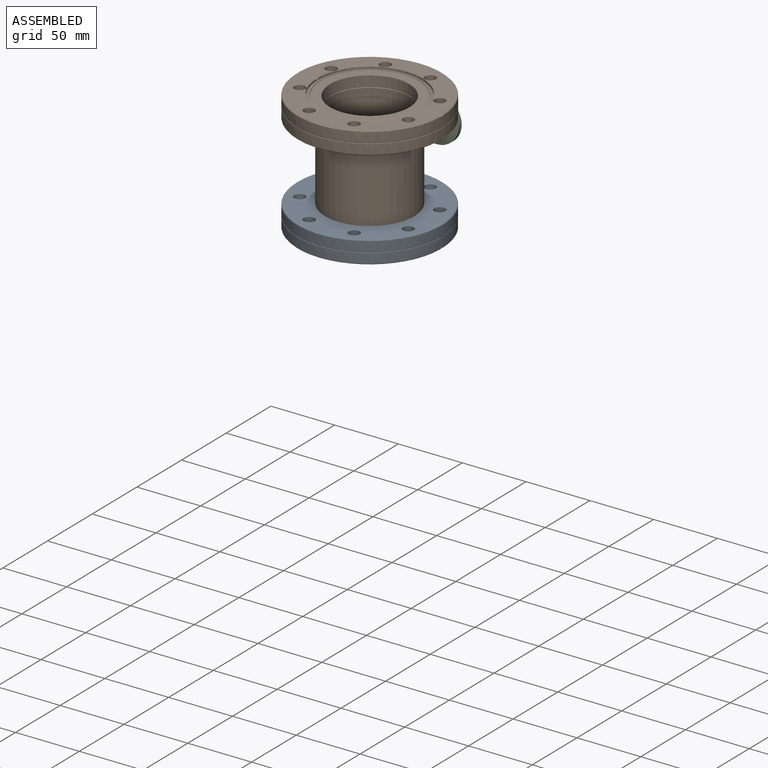
[diagram: assembled view]
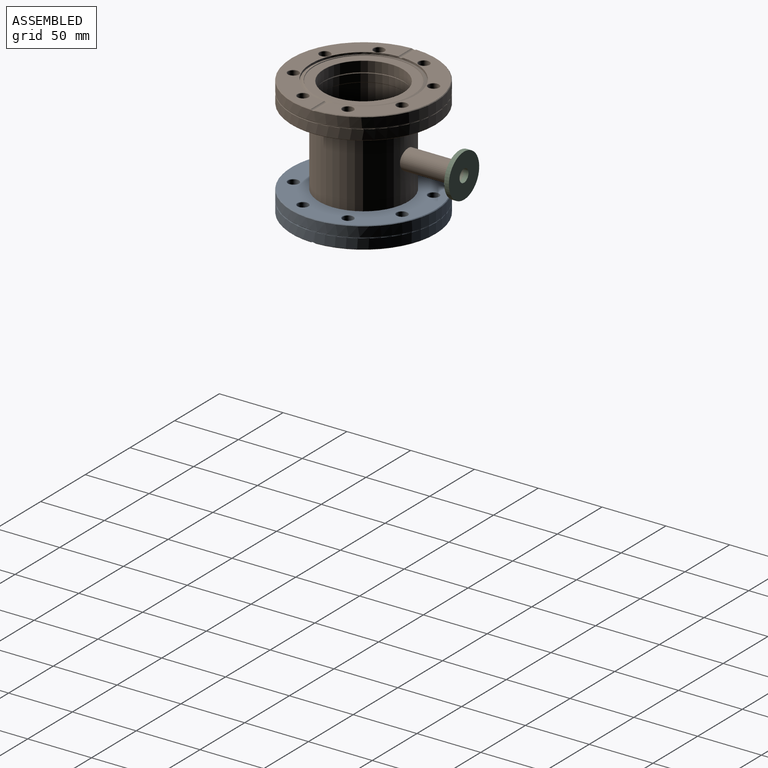
[diagram: assembled view, second angle]
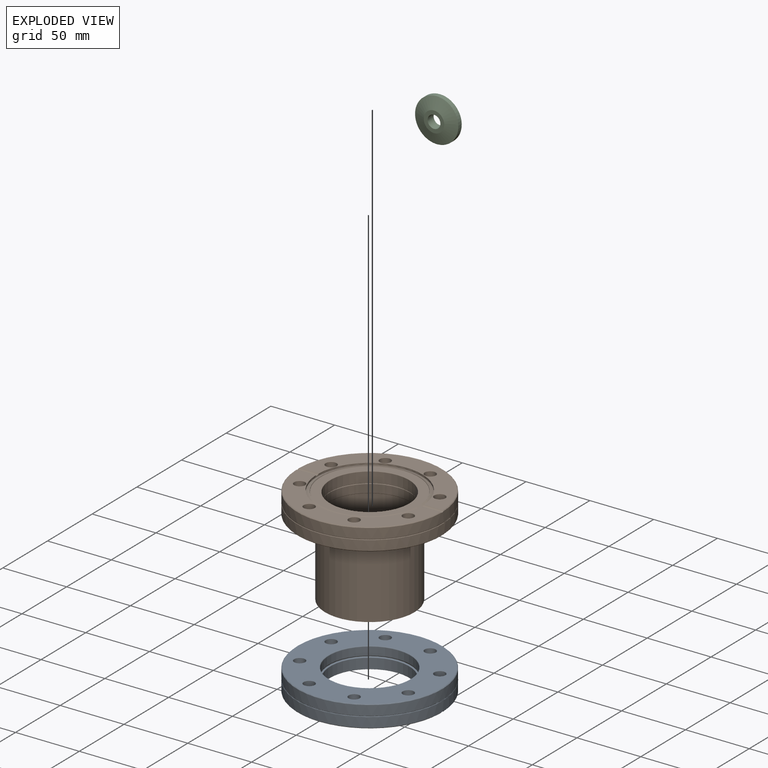
[diagram: exploded view]
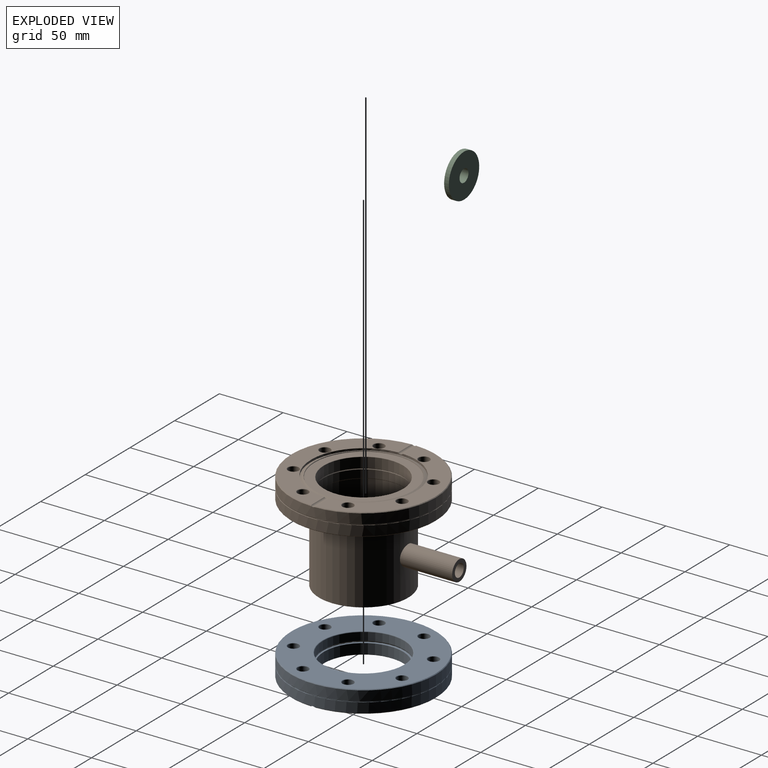
[diagram: exploded view, second angle]
ASSEMBLY  parts=3 mates=2
PART A: 47 faces, bbox 123.4x17.3x123.4 mm
  f0: cylinder r=56.77mm len=113.54mm, axis (0,-1,0), area 2742.3mm2, adj f1,f2,f5,f11,f42
  f1: cylinder r=2.38mm len=15.52mm, axis (0,0,1), area 61.5mm2, adj f0,f2,f3,f4,f5,f6
  f2: cone r=56.77mm half-angle=45deg, axis (0,1,0), area 125.5mm2, adj f0,f1,f3,f11
  f3: plane 112.47x54.49mm, normal (0,-1,0), area 1991.8mm2, adj f1,f2,f4,f11,f12,f15,f18,f21
  f4: cylinder r=41.27mm len=82.55mm, axis (0,1,0), area 423mm2, adj f1,f3,f6,f11,f44
  f5: cone r=56.77mm half-angle=45deg, axis (0,1,0), area 125.5mm2, adj f0,f1,f6,f11
  f6: plane 112.47x54.49mm, normal (0,-1,0), area 1991.8mm2, adj f1,f4,f5,f11,f24,f27,f30,f33
  f7: cylinder r=56.77mm len=113.54mm, axis (0,-1,0), area 2742.3mm2, adj f39,f42
  f8: plane 112.52x112.52mm, normal (0,1,0), area 6147mm2, adj f13,f16,f19,f22,f25,f28,f31,f34
  f9: cylinder r=31.88mm len=63.75mm, axis (0,1,0), area 1229.6mm2, adj f36,f41
  f10: cylinder r=30.99mm len=61.98mm, axis (0,-1,0), area 1538mm2, adj f37,f38
  f11: cylinder r=2.38mm len=15.52mm, axis (0,0,-1), area 61.5mm2, adj f0,f2,f3,f4,f5,f6
  f12: cone r=4.47mm half-angle=45deg, axis (0,-1,0), area 9.8mm2, adj f3,f14
  f13: cone r=4.22mm half-angle=45deg, axis (0,1,0), area 9.8mm2, adj f8,f14
  f14: cylinder r=4.22mm len=16.76mm, axis (0,-1,0), area 444.1mm2, adj f12,f13
  f15: cone r=4.47mm half-angle=45deg, axis (0,-1,0), area 9.8mm2, adj f3,f17
  f16: cone r=4.22mm half-angle=45deg, axis (0,1,0), area 9.8mm2, adj f8,f17
  f17: cylinder r=4.22mm len=16.76mm, axis (0,-1,0), area 444.1mm2, adj f15,f16
  f18: cone r=4.47mm half-angle=45deg, axis (0,-1,0), area 9.8mm2, adj f3,f20
  f19: cone r=4.22mm half-angle=45deg, axis (0,1,0), area 9.8mm2, adj f8,f20
  f20: cylinder r=4.22mm len=16.76mm, axis (0,-1,0), area 444.1mm2, adj f18,f19
  f21: cone r=4.47mm half-angle=45deg, axis (0,-1,0), area 9.8mm2, adj f3,f23
  f22: cone r=4.22mm half-angle=45deg, axis (0,1,0), area 9.8mm2, adj f8,f23
  f23: cylinder r=4.22mm len=16.76mm, axis (0,-1,0), area 444.1mm2, adj f21,f22
  f24: cone r=4.47mm half-angle=45deg, axis (0,-1,0), area 9.8mm2, adj f6,f26
  f25: cone r=4.22mm half-angle=45deg, axis (0,1,0), area 9.8mm2, adj f8,f26
  f26: cylinder r=4.22mm len=16.76mm, axis (0,-1,0), area 444.1mm2, adj f24,f25
  f27: cone r=4.47mm half-angle=45deg, axis (0,-1,0), area 9.8mm2, adj f6,f29
  f28: cone r=4.22mm half-angle=45deg, axis (0,1,0), area 9.8mm2, adj f8,f29
  f29: cylinder r=4.22mm len=16.76mm, axis (0,-1,0), area 444.1mm2, adj f27,f28
  f30: cone r=4.47mm half-angle=45deg, axis (0,-1,0), area 9.8mm2, adj f6,f32
  f31: cone r=4.22mm half-angle=45deg, axis (0,1,0), area 9.8mm2, adj f8,f32
  f32: cylinder r=4.22mm len=16.76mm, axis (0,-1,0), area 444.1mm2, adj f30,f31
  f33: cone r=4.47mm half-angle=45deg, axis (0,-1,0), area 9.8mm2, adj f6,f35
  f34: cone r=4.22mm half-angle=45deg, axis (0,1,0), area 9.8mm2, adj f8,f35
  f35: cylinder r=4.22mm len=16.76mm, axis (0,-1,0), area 444.1mm2, adj f33,f34
  f36: torus R=32.38mm, axis (0,1,0), area 160.7mm2, adj f8,f9
  f37: torus R=31.19mm, axis (0,-1,0), area 62.3mm2, adj f10,f46
  f38: torus R=31.24mm, axis (0,1,0), area 77.9mm2, adj f10,f45
  f39: cone r=56.26mm half-angle=45deg, axis (0,-1,0), area 255.1mm2, adj f7,f8
  f40: torus R=31.88mm, axis (0,-1,0), area 163.9mm2, adj f41,f46
  f41: cone r=31.88mm half-angle=32deg, axis (0,-1,0), area 122.7mm2, adj f9,f40
  f42: torus R=57.02mm, axis (0,-1,0), area 378.4mm2, adj f0,f7
  f43: cone r=38.61mm half-angle=20deg, axis (0,-1,0), area 130.8mm2, adj f44,f45
  f44: cone r=41.27mm half-angle=70deg, axis (0,1,0), area 712.3mm2, adj f4,f43
  f45: plane 76.85x76.85mm, normal (0,-1,0), area 1571.7mm2, adj f38,f43
  f46: plane 63.75x63.75mm, normal (0,1,0), area 135.9mm2, adj f37,f40
PART B: 53 faces, bbox 136.7x77.3x123.4 mm
  f0: cylinder r=35mm len=70mm, axis (0,-1,0), area 12992.5mm2, adj f9,f49,f52
  f1: cylinder r=56.77mm len=113.54mm, axis (0,-1,0), area 2742.3mm2, adj f2,f3,f6,f12,f43
  f2: cylinder r=2.38mm len=15.52mm, axis (0,0,1), area 61.5mm2, adj f1,f3,f4,f5,f6,f7
  f3: cone r=56.77mm half-angle=45deg, axis (0,1,0), area 125.5mm2, adj f1,f2,f4,f12
  f4: plane 112.47x54.49mm, normal (0,-1,0), area 1991.8mm2, adj f2,f3,f5,f12,f13,f16,f19,f22
  f5: cylinder r=41.27mm len=82.55mm, axis (0,1,0), area 423mm2, adj f2,f4,f7,f12,f45
  f6: cone r=56.77mm half-angle=45deg, axis (0,1,0), area 125.5mm2, adj f1,f2,f7,f12
  f7: plane 112.47x54.49mm, normal (0,-1,0), area 1991.8mm2, adj f2,f5,f6,f12,f25,f28,f31,f34
  f8: cylinder r=56.77mm len=113.54mm, axis (0,-1,0), area 2742.3mm2, adj f40,f43
  f9: plane 112.52x112.52mm, normal (0,1,0), area 5593.4mm2, adj f0,f14,f17,f20,f23,f26,f29,f32
  f10: cylinder r=31.88mm len=63.75mm, axis (0,1,0), area 1229.6mm2, adj f37,f42
  f11: cylinder r=30.99mm len=61.98mm, axis (0,-1,0), area 1538mm2, adj f38,f39
  f12: cylinder r=2.38mm len=15.52mm, axis (0,0,-1), area 61.5mm2, adj f1,f3,f4,f5,f6,f7
  f13: cone r=4.47mm half-angle=45deg, axis (0,-1,0), area 9.8mm2, adj f4,f15
  f14: cone r=4.22mm half-angle=45deg, axis (0,1,0), area 9.8mm2, adj f9,f15
  f15: cylinder r=4.22mm len=16.76mm, axis (0,-1,0), area 444.1mm2, adj f13,f14
  f16: cone r=4.47mm half-angle=45deg, axis (0,-1,0), area 9.8mm2, adj f4,f18
  f17: cone r=4.22mm half-angle=45deg, axis (0,1,0), area 9.8mm2, adj f9,f18
  f18: cylinder r=4.22mm len=16.76mm, axis (0,-1,0), area 444.1mm2, adj f16,f17
  f19: cone r=4.47mm half-angle=45deg, axis (0,-1,0), area 9.8mm2, adj f4,f21
  f20: cone r=4.22mm half-angle=45deg, axis (0,1,0), area 9.8mm2, adj f9,f21
  f21: cylinder r=4.22mm len=16.76mm, axis (0,-1,0), area 444.1mm2, adj f19,f20
  f22: cone r=4.47mm half-angle=45deg, axis (0,-1,0), area 9.8mm2, adj f4,f24
  f23: cone r=4.22mm half-angle=45deg, axis (0,1,0), area 9.8mm2, adj f9,f24
  f24: cylinder r=4.22mm len=16.76mm, axis (0,-1,0), area 444.1mm2, adj f22,f23
  f25: cone r=4.47mm half-angle=45deg, axis (0,-1,0), area 9.8mm2, adj f7,f27
  f26: cone r=4.22mm half-angle=45deg, axis (0,1,0), area 9.8mm2, adj f9,f27
  f27: cylinder r=4.22mm len=16.76mm, axis (0,-1,0), area 444.1mm2, adj f25,f26
  f28: cone r=4.47mm half-angle=45deg, axis (0,-1,0), area 9.8mm2, adj f7,f30
  f29: cone r=4.22mm half-angle=45deg, axis (0,1,0), area 9.8mm2, adj f9,f30
  f30: cylinder r=4.22mm len=16.76mm, axis (0,-1,0), area 444.1mm2, adj f28,f29
  f31: cone r=4.47mm half-angle=45deg, axis (0,-1,0), area 9.8mm2, adj f7,f33
  f32: cone r=4.22mm half-angle=45deg, axis (0,1,0), area 9.8mm2, adj f9,f33
  f33: cylinder r=4.22mm len=16.76mm, axis (0,-1,0), area 444.1mm2, adj f31,f32
  f34: cone r=4.47mm half-angle=45deg, axis (0,-1,0), area 9.8mm2, adj f7,f36
  f35: cone r=4.22mm half-angle=45deg, axis (0,1,0), area 9.8mm2, adj f9,f36
  f36: cylinder r=4.22mm len=16.76mm, axis (0,-1,0), area 444.1mm2, adj f34,f35
  f37: torus R=32.38mm, axis (0,1,0), area 160.7mm2, adj f10,f48
  f38: torus R=31.19mm, axis (0,-1,0), area 62.3mm2, adj f11,f47
  f39: torus R=31.24mm, axis (0,1,0), area 77.9mm2, adj f11,f46
  f40: cone r=56.26mm half-angle=45deg, axis (0,-1,0), area 255.1mm2, adj f8,f9
  f41: torus R=31.88mm, axis (0,-1,0), area 163.9mm2, adj f42,f47
  f42: cone r=31.88mm half-angle=32deg, axis (0,-1,0), area 122.7mm2, adj f10,f41
  f43: torus R=57.02mm, axis (0,-1,0), area 378.4mm2, adj f1,f8
  f44: cone r=38.61mm half-angle=20deg, axis (0,-1,0), area 130.8mm2, adj f45,f46
  f45: cone r=41.27mm half-angle=70deg, axis (0,1,0), area 712.3mm2, adj f5,f44
  f46: plane 76.85x76.85mm, normal (0,-1,0), area 1571.7mm2, adj f39,f44
  f47: plane 63.75x63.75mm, normal (0,1,0), area 135.9mm2, adj f38,f41
  f48: cylinder r=32.38mm len=64.77mm, axis (0,-1,0), area 12144.4mm2, adj f37,f49,f50
  f49: plane 70x70mm, normal (0,1,0), area 553.6mm2, adj f0,f48
  f50: cylinder r=5mm len=43mm, axis (-1,0,0), area 1341.8mm2, adj f48,f51
  f51: plane 16x16mm, normal (-1,0,0), area 122.5mm2, adj f50,f52
  f52: cylinder r=8mm len=40.93mm, axis (1,0,0), area 2057.2mm2, adj f0,f51
PART C: 5 faces, bbox 34x34x6.7 mm
  f0: cylinder r=17mm len=34mm, axis (0,0,1), area 393.4mm2, adj f1,f4
  f1: cone r=17mm half-angle=71.3deg, axis (0,0,1), area 746.3mm2, adj f0,f2
  f2: plane 16x16mm, normal (0,0,-1), area 122.5mm2, adj f1,f3
  f3: cylinder r=5mm len=10mm, axis (0,0,1), area 211.5mm2, adj f2,f4
  f4: plane 34x34mm, normal (0,0,1), area 829.4mm2, adj f0,f3
PLACE A rot(axis=(0.58,-0.58,-0.58),120deg) t=(-45.75,-23.78,-122.85)mm
PLACE B rot(axis=(-0.58,0.58,-0.58),120deg) t=(-45.75,-23.78,-45.58)mm
PLACE C rot(axis=(-0.58,-0.58,-0.58),120deg) t=(-45.75,48.17,-84.22)mm
MATE fastened C.f1 <-> B.f52  axis (0,-1,0) through (-45.75,48.17,-84.22)mm
MATE fastened A.f9 <-> B.f0  axis (0,0,1) through (-45.75,-23.78,-114.22)mm
